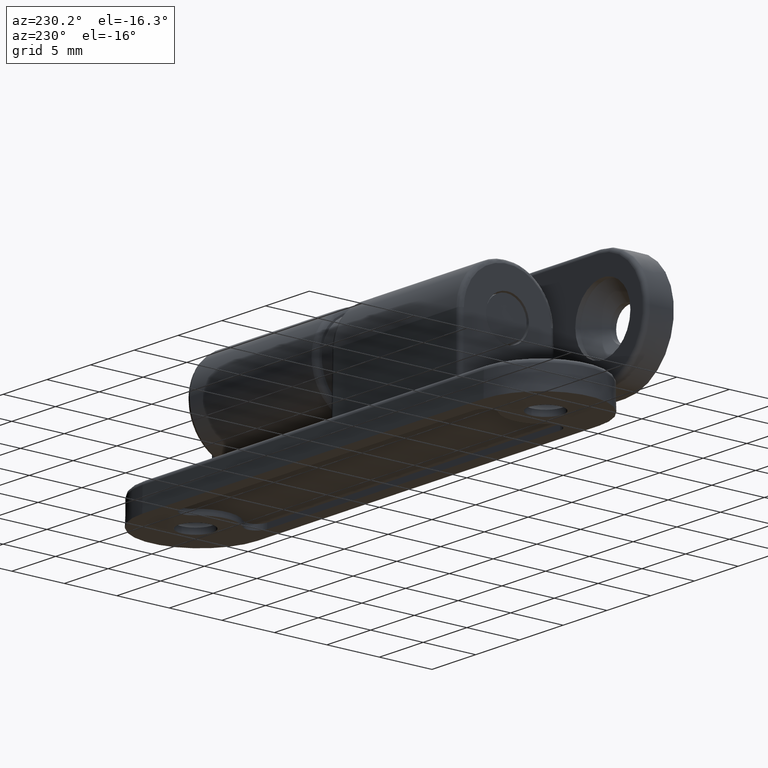
[diagram: clean part render]
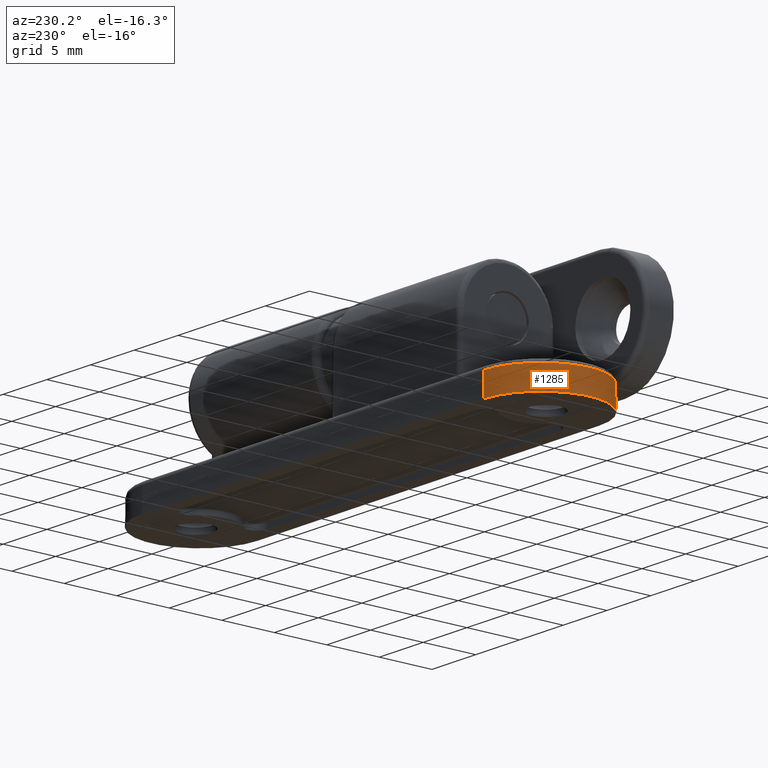
[diagram: same view with one face highlighted and labeled with its STEP entity id]
A machine part, auxiliary view. The second image highlights one B-rep face of the part: STEP entity #1285.
In plain terms, the highlighted conical surface has half-angle 1 deg.
Its self-contained STEP definition (entity closure, byte-faithful):
#48=CONICAL_SURFACE('',#1447,5.49996953903123,1.);
#127=LINE('',#2583,#199);
#129=LINE('',#2590,#201);
#199=VECTOR('',#1727,2.20731714766779);
#201=VECTOR('',#1737,2.20731714766777);
#355=FACE_OUTER_BOUND('',#463,.T.);
#463=EDGE_LOOP('',(#1151,#1152,#1153,#1154));
#524=CIRCLE('',#1386,5.50003046560873);
#551=CIRCLE('',#1446,5.46150746961165);
#619=VERTEX_POINT('',#2526);
#620=VERTEX_POINT('',#2527);
#646=VERTEX_POINT('',#2581);
#647=VERTEX_POINT('',#2589);
#760=EDGE_CURVE('',#619,#620,#524,.T.);
#787=EDGE_CURVE('',#646,#620,#127,.T.);
#791=EDGE_CURVE('',#647,#619,#129,.T.);
#833=EDGE_CURVE('',#646,#647,#551,.T.);
#1151=ORIENTED_EDGE('',*,*,#787,.F.);
#1152=ORIENTED_EDGE('',*,*,#833,.T.);
#1153=ORIENTED_EDGE('',*,*,#791,.T.);
#1154=ORIENTED_EDGE('',*,*,#760,.T.);
#1285=ADVANCED_FACE('',(#355),#48,.T.);
#1386=AXIS2_PLACEMENT_3D('',#2528,#1680,#1681);
#1446=AXIS2_PLACEMENT_3D('',#3122,#1836,#1837);
#1447=AXIS2_PLACEMENT_3D('',#3123,#1838,#1839);
#1680=DIRECTION('center_axis',(0.,1.,2.22044604925031E-16));
#1681=DIRECTION('ref_axis',(-1.,0.,0.));
#1727=DIRECTION('',(0.,-0.999847695156391,0.0174524064372833));
#1737=DIRECTION('',(-3.20595505212569E-18,-0.999847695156391,-0.0174524064372837));
#1836=DIRECTION('center_axis',(0.,-1.,-2.22044604925031E-16));
#1837=DIRECTION('ref_axis',(-1.,0.,0.));
#1838=DIRECTION('center_axis',(0.,-1.,-2.22044604925031E-16));
#1839=DIRECTION('ref_axis',(-1.,-2.71926214689377E-32,1.22464679914735E-16));
#2526=CARTESIAN_POINT('',(-19.5,1.22125209181169E-15,-5.50003046560855));
#2527=CARTESIAN_POINT('',(-19.5,-1.22125209181171E-15,5.50003046560864));
#2528=CARTESIAN_POINT('Origin',(-19.5,-3.25405123403667E-29,1.46549439250521E-13));
#2581=CARTESIAN_POINT('',(-19.5,2.20698096257482,5.46150746961155));
#2583=CARTESIAN_POINT('',(-19.5,0.00349048128745577,5.49996953903115));
#2589=CARTESIAN_POINT('',(-19.5,2.2069809625748,-5.46150746961165));
#2590=CARTESIAN_POINT('',(-19.5,0.00349048128745821,-5.49996953903105));
#3122=CARTESIAN_POINT('Origin',(-19.5,2.20698096257477,1.47039487466433E-13));
#3123=CARTESIAN_POINT('Origin',(-19.5,0.00349048128745699,1.46550214293059E-13));